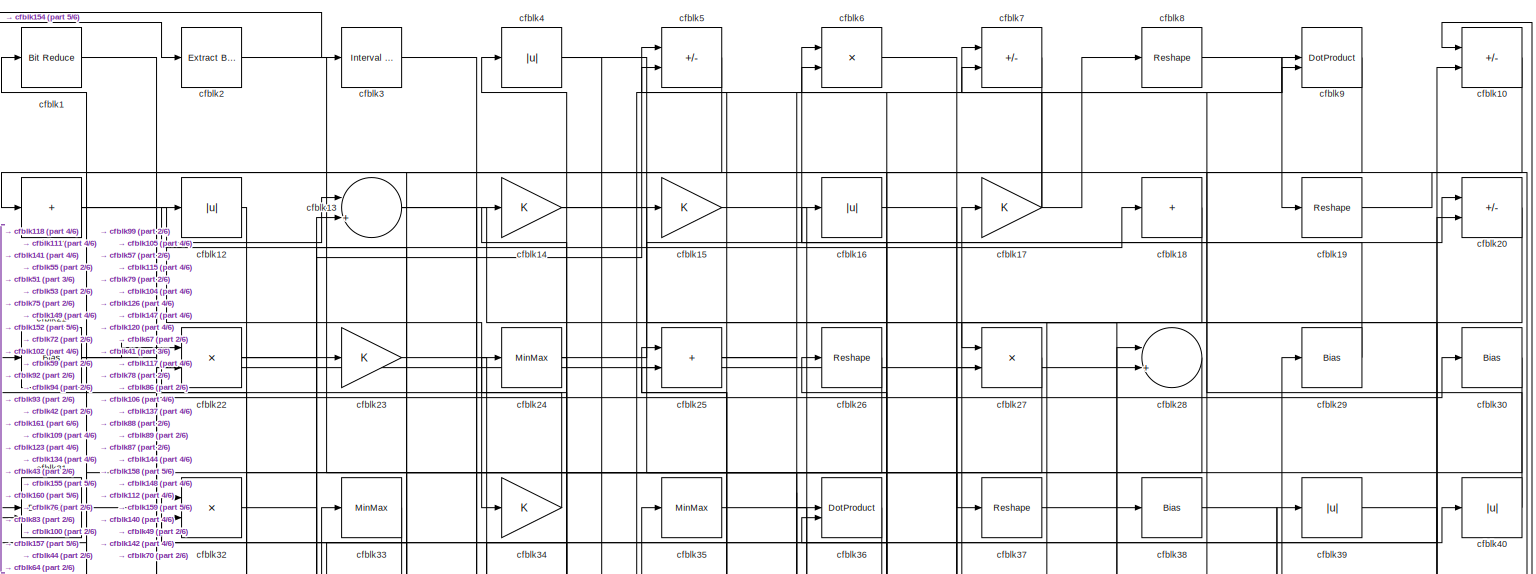
[diagram: root canvas - part 1/6, full width, top band]
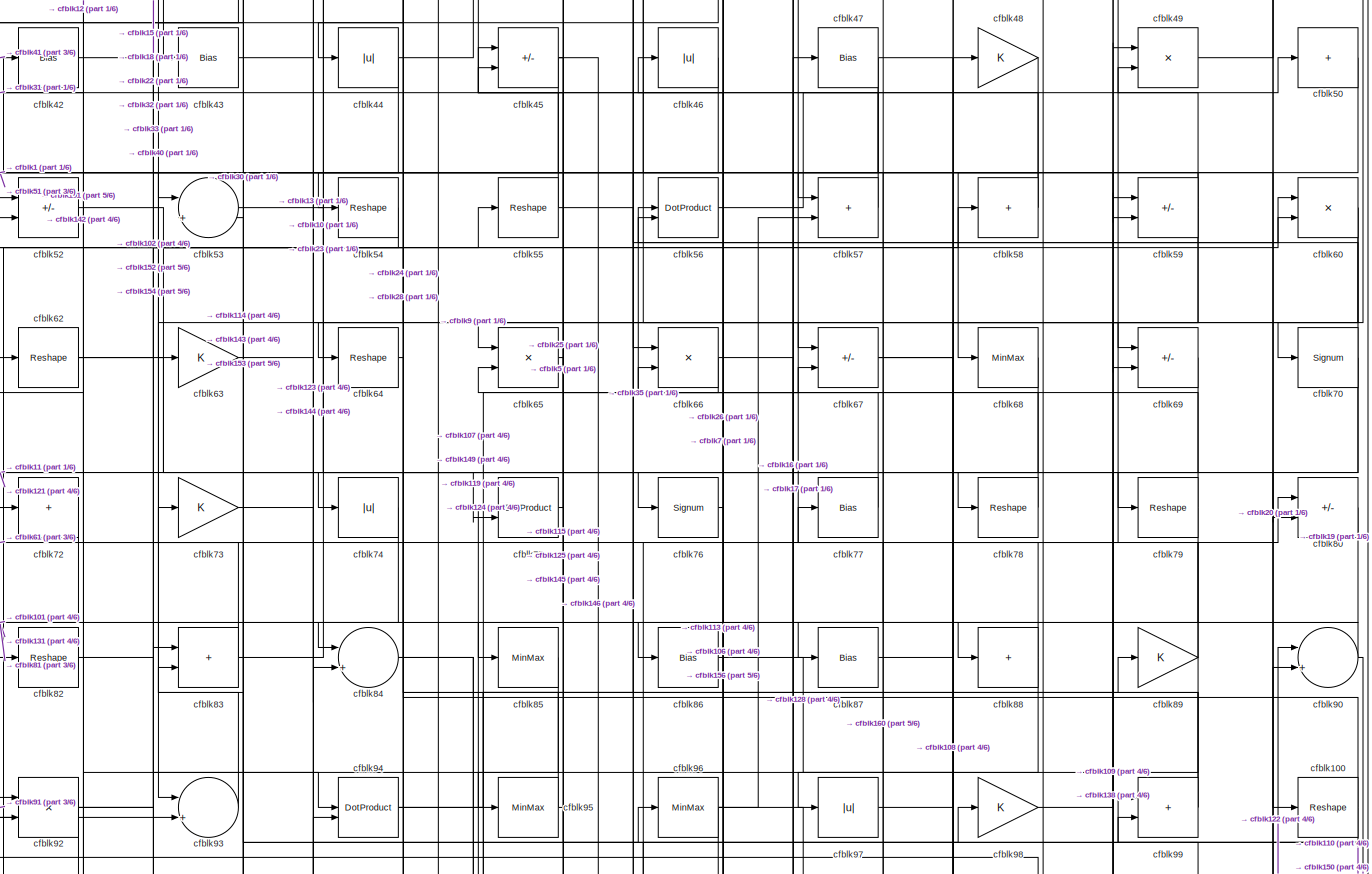
[diagram: root canvas - part 2/6, full width, middle band]
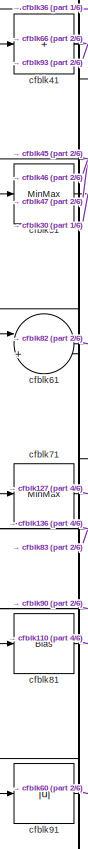
[diagram: root canvas - part 3/6, middle left region]
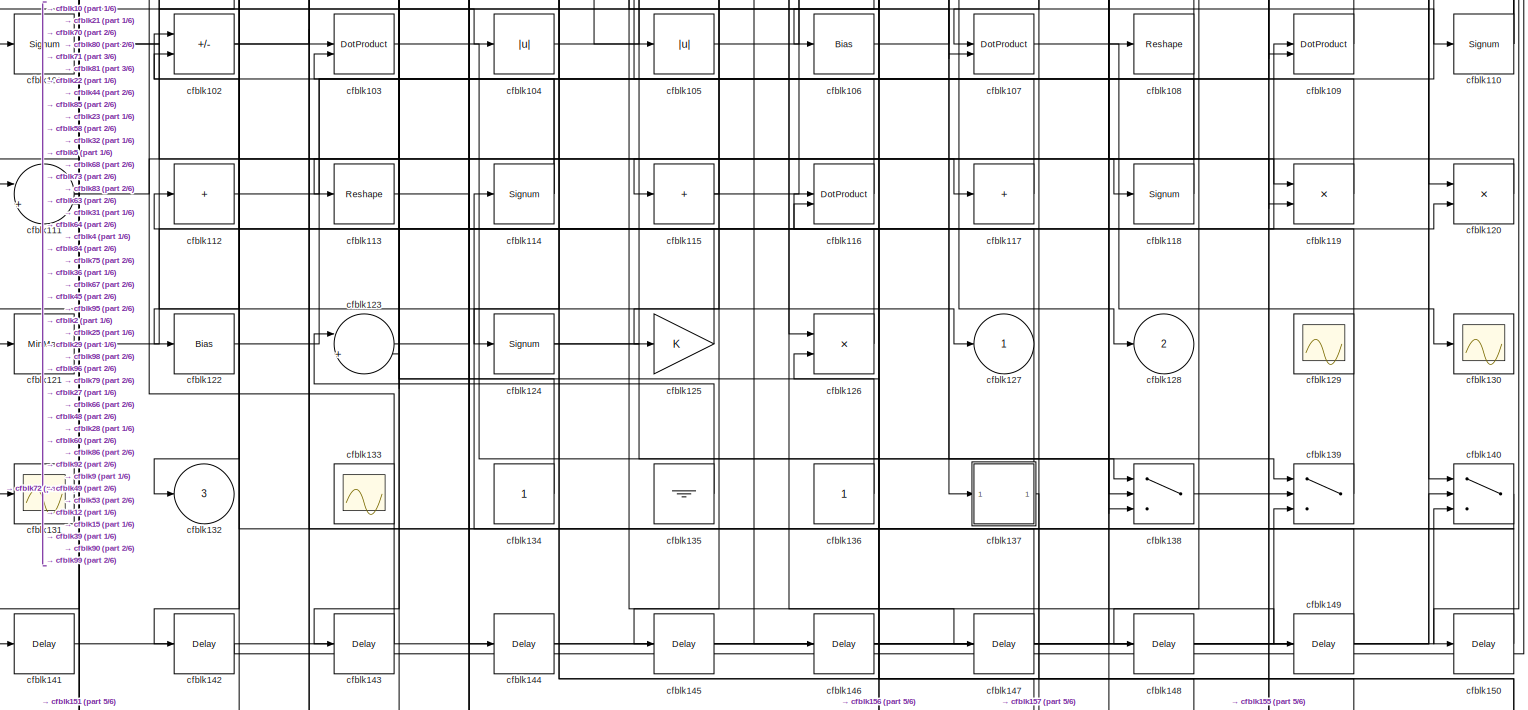
[diagram: root canvas - part 4/6, full width, bottom band]
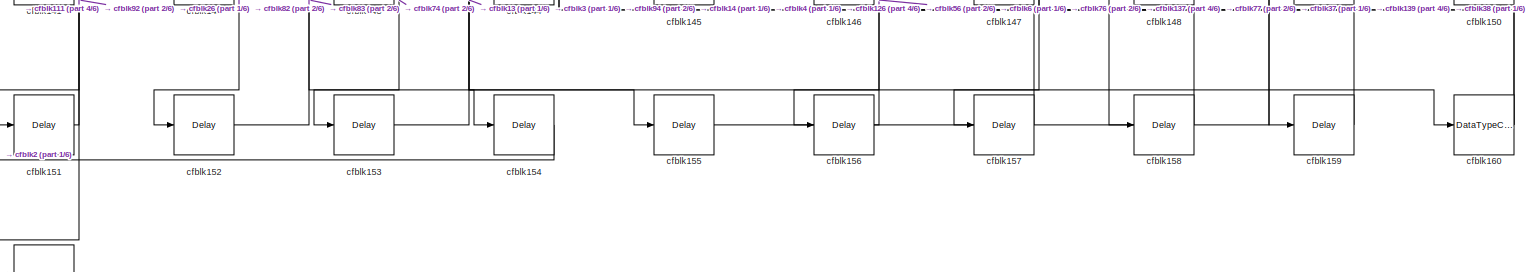
[diagram: root canvas - part 5/6, full width, bottom band]
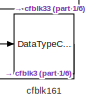
[diagram: root canvas - part 6/6, bottom left region]
MODEL slx_43f7733bcbab
KIND model
CONFIG AbsTol = auto
CONFIG EnableMultiTasking = off
CONFIG FixedStep = auto
CONFIG MaxStep = auto
CONFIG MinStep = auto
CONFIG RelTol = 1e-3
CONFIG SampleTimeConstraint = Unconstrained
CONFIG SolverName = VariableStepAuto
CONFIG StartTime = 0.0
CONFIG StopTime = 10.0
BLOCK [Reference] cfblk1  REF=hdlsllib/Logic and Bit
Operations/Bit Reduce
  SourceBlock = hdlsllib/Logic and Bit\nOperations/Bit Reduce
  SourceType = Bit Reduce
BLOCK [Sum] cfblk10
  IconShape = rectangular
  Inputs = +-
BLOCK [Reshape] cfblk100
BLOCK [Signum] cfblk101
BLOCK [Sum] cfblk102
  IconShape = rectangular
  Inputs = +-
BLOCK [DotProduct] cfblk103
  OutDataTypeStr = Inherit: Inherit via internal rule
BLOCK [Abs] cfblk104
  SaturateOnIntegerOverflow = off
BLOCK [Abs] cfblk105
  SaturateOnIntegerOverflow = off
BLOCK [Bias] cfblk106
  Bias = 0.0
  SaturateOnIntegerOverflow = off
BLOCK [DotProduct] cfblk107
  OutDataTypeStr = Inherit: Inherit via internal rule
BLOCK [Reshape] cfblk108
BLOCK [DotProduct] cfblk109
  OutDataTypeStr = Inherit: Inherit via internal rule
BLOCK [Sum] cfblk11
  IconShape = rectangular
  Inputs = +
BLOCK [Signum] cfblk110
BLOCK [Sum] cfblk111
  Inputs = |++
BLOCK [Sum] cfblk112
  IconShape = rectangular
  Inputs = +
BLOCK [Reshape] cfblk113
BLOCK [Signum] cfblk114
BLOCK [Sum] cfblk115
  IconShape = rectangular
  Inputs = +
BLOCK [DotProduct] cfblk116
  OutDataTypeStr = Inherit: Inherit via internal rule
BLOCK [Sum] cfblk117
  IconShape = rectangular
  Inputs = +
BLOCK [Signum] cfblk118
BLOCK [Product] cfblk119
  Inputs = */
  RndMeth = Zero
  SaturateOnIntegerOverflow = on
BLOCK [Abs] cfblk12
  SaturateOnIntegerOverflow = off
BLOCK [Product] cfblk120
  Inputs = */
  RndMeth = Zero
  SaturateOnIntegerOverflow = on
BLOCK [MinMax] cfblk121
BLOCK [Bias] cfblk122
  Bias = 0.0
  SaturateOnIntegerOverflow = off
BLOCK [Sum] cfblk123
  Inputs = |++
BLOCK [Signum] cfblk124
BLOCK [Gain] cfblk125
BLOCK [Product] cfblk126
  Inputs = */
  RndMeth = Zero
  SaturateOnIntegerOverflow = on
BLOCK [Outport] cfblk127
  VectorParamsAs1DForOutWhenUnconnected = off
BLOCK [Outport] cfblk128
  Port = 2
  VectorParamsAs1DForOutWhenUnconnected = off
BLOCK [Scope] cfblk129
  Floating = on
  NumInputPorts = 1
  ScopeSpecificationString = Simulink.scopes.TimeScopeBlockCfg('CurrentConfiguration', extmgr.ConfigurationSet(extmgr.Configuration('Core','General UI',true,'FigureColor',[0.156862745098039 0.156862745098039 0.156862745098039]),extmgr.Configuration('Core','Source UI',true),extmgr.Configuration('Sources','WiredSimulink',true,'DataLoggingVariableName','ScopeData1','DataLoggingSaveFormat','StructureWithTime','DataLoggingLimitDat...<+2713ch>
BLOCK [Sum] cfblk13
  Inputs = |++
BLOCK [Scope] cfblk130
  Floating = off
  NumInputPorts = 1
  ScopeSpecificationString = Simulink.scopes.TimeScopeBlockCfg('CurrentConfiguration', extmgr.ConfigurationSet(extmgr.Configuration('Core','General UI',true),extmgr.Configuration('Core','Source UI',true),extmgr.Configuration('Sources','WiredSimulink',true,'DataLoggingVariableName','ScopeData2','DataLoggingSaveFormat','Array','DataLoggingLimitDataPoints',true,'DataLoggingDecimation','1'),extmgr.Configuration('Visuals','Time Do...<+868ch>
BLOCK [Scope] cfblk131
  Floating = off
  NumInputPorts = 1
  ScopeSpecificationString = Simulink.scopes.TimeScopeBlockCfg('CurrentConfiguration', extmgr.ConfigurationSet(extmgr.Configuration('Core','General UI',true),extmgr.Configuration('Core','Source UI',true),extmgr.Configuration('Sources','WiredSimulink',true,'DataLoggingVariableName','ScopeData2','DataLoggingSaveFormat','Array','DataLoggingLimitDataPoints',true,'DataLoggingDecimation','1'),extmgr.Configuration('Visuals','Time Do...<+868ch>
BLOCK [Outport] cfblk132
  Port = 3
  VectorParamsAs1DForOutWhenUnconnected = off
BLOCK [Scope] cfblk133
  Floating = on
  NumInputPorts = 1
  ScopeSpecificationString = Simulink.scopes.TimeScopeBlockCfg('CurrentConfiguration', extmgr.ConfigurationSet(extmgr.Configuration('Core','General UI',true,'FigureColor',[0.156862745098039 0.156862745098039 0.156862745098039]),extmgr.Configuration('Core','Source UI',true),extmgr.Configuration('Sources','WiredSimulink',true,'DataLoggingVariableName','ScopeData1','DataLoggingSaveFormat','StructureWithTime','DataLoggingLimitDat...<+2713ch>
BLOCK [Constant] cfblk134
  SampleTime = -1
BLOCK [Ground] cfblk135
BLOCK [Constant] cfblk136
  SampleTime = -1
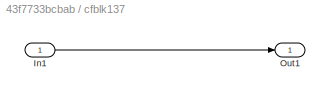
BLOCK [SubSystem] cfblk137
  LibrarySourceBlock = hdlsllib/Ports &\nSubsystems/Subsystem
BLOCK [Inport] cfblk137/In1
BLOCK [Outport] cfblk137/Out1
BLOCK [Switch] cfblk138
  InputSameDT = off
  SaturateOnIntegerOverflow = off
BLOCK [Switch] cfblk139
  InputSameDT = off
  SaturateOnIntegerOverflow = off
BLOCK [Gain] cfblk14
BLOCK [Switch] cfblk140
  InputSameDT = off
  SaturateOnIntegerOverflow = off
BLOCK [Delay] cfblk141
  InputPortMap = u0
  SampleTime = 1
BLOCK [Delay] cfblk142
  InputPortMap = u0
  SampleTime = 1
BLOCK [Delay] cfblk143
  InputPortMap = u0
  SampleTime = 1
BLOCK [Delay] cfblk144
  InputPortMap = u0
  SampleTime = 1
BLOCK [Delay] cfblk145
  InputPortMap = u0
  SampleTime = 1
BLOCK [Delay] cfblk146
  InputPortMap = u0
  SampleTime = 1
BLOCK [Delay] cfblk147
  InputPortMap = u0
  SampleTime = 1
BLOCK [Delay] cfblk148
  InputPortMap = u0
  SampleTime = 1
BLOCK [Delay] cfblk149
  InputPortMap = u0
  SampleTime = 1
BLOCK [Gain] cfblk15
BLOCK [Delay] cfblk150
  InputPortMap = u0
  SampleTime = 1
BLOCK [Delay] cfblk151
  InputPortMap = u0
  SampleTime = 1
BLOCK [Delay] cfblk152
  InputPortMap = u0
  SampleTime = 1
BLOCK [Delay] cfblk153
  InputPortMap = u0
  SampleTime = 1
BLOCK [Delay] cfblk154
  InputPortMap = u0
  SampleTime = 1
BLOCK [Delay] cfblk155
  InputPortMap = u0
  SampleTime = 1
BLOCK [Delay] cfblk156
  InputPortMap = u0
  SampleTime = 1
BLOCK [Delay] cfblk157
  InputPortMap = u0
  SampleTime = 1
BLOCK [Delay] cfblk158
  InputPortMap = u0
  SampleTime = 1
BLOCK [Delay] cfblk159
  InputPortMap = u0
  SampleTime = 1
BLOCK [Abs] cfblk16
  SaturateOnIntegerOverflow = off
BLOCK [DataTypeConversion] cfblk160
  RndMeth = Floor
  SaturateOnIntegerOverflow = off
BLOCK [DataTypeConversion] cfblk161
  OutDataTypeStr = uint8
  RndMeth = Floor
  SaturateOnIntegerOverflow = off
BLOCK [Gain] cfblk17
BLOCK [Sum] cfblk18
  IconShape = rectangular
  Inputs = +
BLOCK [Reshape] cfblk19
BLOCK [Reference] cfblk2  REF=simulink/Logic and Bit
Operations/Extract Bits
  LibrarySourceBlock = hdlsllib/Logic and Bit\nOperations/Extract Bits
  SourceBlock = simulink/Logic and Bit\nOperations/Extract Bits
  SourceType = Extract Bits
BLOCK [Sum] cfblk20
  IconShape = rectangular
  Inputs = +-
BLOCK [Bias] cfblk21
  Bias = 0.0
  SaturateOnIntegerOverflow = off
BLOCK [Product] cfblk22
  Inputs = */
  RndMeth = Zero
  SaturateOnIntegerOverflow = on
BLOCK [Gain] cfblk23
BLOCK [MinMax] cfblk24
BLOCK [Sum] cfblk25
  IconShape = rectangular
BLOCK [Reshape] cfblk26
BLOCK [Product] cfblk27
  Inputs = */
  RndMeth = Zero
  SaturateOnIntegerOverflow = on
BLOCK [Sum] cfblk28
  Inputs = |++
BLOCK [Bias] cfblk29
  Bias = 0.0
  SaturateOnIntegerOverflow = off
BLOCK [Reference] cfblk3  REF=hdlsllib/Logic and Bit
Operations/Interval Test
  SourceBlock = hdlsllib/Logic and Bit\nOperations/Interval Test
  SourceType = Interval Test
BLOCK [Bias] cfblk30
  Bias = 0.0
  SaturateOnIntegerOverflow = off
BLOCK [DotProduct] cfblk31
  OutDataTypeStr = Inherit: Inherit via internal rule
BLOCK [Product] cfblk32
  Inputs = */
  RndMeth = Zero
  SaturateOnIntegerOverflow = on
BLOCK [MinMax] cfblk33
BLOCK [Gain] cfblk34
BLOCK [MinMax] cfblk35
BLOCK [DotProduct] cfblk36
  OutDataTypeStr = Inherit: Inherit via internal rule
BLOCK [Reshape] cfblk37
BLOCK [Bias] cfblk38
  Bias = 0.0
  SaturateOnIntegerOverflow = off
BLOCK [Abs] cfblk39
  SaturateOnIntegerOverflow = off
BLOCK [Abs] cfblk4
  SaturateOnIntegerOverflow = off
BLOCK [Abs] cfblk40
  SaturateOnIntegerOverflow = off
BLOCK [Sum] cfblk41
  IconShape = rectangular
  Inputs = +
BLOCK [Bias] cfblk42
  Bias = 0.0
  SaturateOnIntegerOverflow = off
BLOCK [Bias] cfblk43
  Bias = 0.0
  SaturateOnIntegerOverflow = off
BLOCK [Abs] cfblk44
  SaturateOnIntegerOverflow = off
BLOCK [Sum] cfblk45
  IconShape = rectangular
  Inputs = +-
BLOCK [Abs] cfblk46
  SaturateOnIntegerOverflow = off
BLOCK [Bias] cfblk47
  Bias = 0.0
  SaturateOnIntegerOverflow = off
BLOCK [Gain] cfblk48
BLOCK [Product] cfblk49
  Inputs = */
  RndMeth = Zero
  SaturateOnIntegerOverflow = on
BLOCK [Sum] cfblk5
  IconShape = rectangular
  Inputs = +-
BLOCK [Sum] cfblk50
  IconShape = rectangular
  Inputs = +
BLOCK [MinMax] cfblk51
BLOCK [Sum] cfblk52
  IconShape = rectangular
  Inputs = +-
BLOCK [Sum] cfblk53
  Inputs = |++
BLOCK [Reshape] cfblk54
BLOCK [Reshape] cfblk55
BLOCK [DotProduct] cfblk56
  OutDataTypeStr = Inherit: Inherit via internal rule
BLOCK [Sum] cfblk57
  IconShape = rectangular
BLOCK [Sum] cfblk58
  IconShape = rectangular
  Inputs = +
BLOCK [Sum] cfblk59
  IconShape = rectangular
  Inputs = +-
BLOCK [Product] cfblk6
  Inputs = */
  RndMeth = Zero
  SaturateOnIntegerOverflow = on
BLOCK [Product] cfblk60
  Inputs = */
  RndMeth = Zero
  SaturateOnIntegerOverflow = on
BLOCK [Sum] cfblk61
  Inputs = |++
BLOCK [Reshape] cfblk62
BLOCK [Gain] cfblk63
BLOCK [Reshape] cfblk64
BLOCK [Product] cfblk65
  Inputs = */
  RndMeth = Zero
  SaturateOnIntegerOverflow = on
BLOCK [Product] cfblk66
  Inputs = */
  RndMeth = Zero
  SaturateOnIntegerOverflow = on
BLOCK [Sum] cfblk67
  IconShape = rectangular
  Inputs = +-
BLOCK [MinMax] cfblk68
BLOCK [Sum] cfblk69
  IconShape = rectangular
  Inputs = +-
BLOCK [Sum] cfblk7
  IconShape = rectangular
  Inputs = +-
BLOCK [Signum] cfblk70
BLOCK [MinMax] cfblk71
BLOCK [Sum] cfblk72
  IconShape = rectangular
  Inputs = +
BLOCK [Gain] cfblk73
BLOCK [Abs] cfblk74
  SaturateOnIntegerOverflow = off
BLOCK [DotProduct] cfblk75
  OutDataTypeStr = Inherit: Inherit via internal rule
BLOCK [Signum] cfblk76
BLOCK [Bias] cfblk77
  Bias = 0.0
  SaturateOnIntegerOverflow = off
BLOCK [Reshape] cfblk78
BLOCK [Reshape] cfblk79
BLOCK [Reshape] cfblk8
BLOCK [Sum] cfblk80
  IconShape = rectangular
  Inputs = +-
BLOCK [Bias] cfblk81
  Bias = 0.0
  SaturateOnIntegerOverflow = off
BLOCK [Reshape] cfblk82
BLOCK [Sum] cfblk83
  IconShape = rectangular
BLOCK [Sum] cfblk84
  Inputs = |++
BLOCK [MinMax] cfblk85
BLOCK [Bias] cfblk86
  Bias = 0.0
  SaturateOnIntegerOverflow = off
BLOCK [Bias] cfblk87
  Bias = 0.0
  SaturateOnIntegerOverflow = off
BLOCK [Sum] cfblk88
  IconShape = rectangular
  Inputs = +
BLOCK [Gain] cfblk89
BLOCK [DotProduct] cfblk9
  OutDataTypeStr = Inherit: Inherit via internal rule
BLOCK [Sum] cfblk90
  Inputs = |++
BLOCK [Abs] cfblk91
  SaturateOnIntegerOverflow = off
BLOCK [Product] cfblk92
  Inputs = */
  RndMeth = Zero
  SaturateOnIntegerOverflow = on
BLOCK [Sum] cfblk93
  Inputs = |++
BLOCK [DotProduct] cfblk94
  OutDataTypeStr = Inherit: Inherit via internal rule
BLOCK [MinMax] cfblk95
BLOCK [MinMax] cfblk96
BLOCK [Abs] cfblk97
  SaturateOnIntegerOverflow = off
BLOCK [Gain] cfblk98
BLOCK [Sum] cfblk99
  IconShape = rectangular
NET cfblk100:1 -> cfblk24:1, cfblk99:2
NET cfblk101:1 -> cfblk104:1, cfblk118:1
NET cfblk102:1 -> cfblk23:1, cfblk58:1
LINE cfblk103:1 -> cfblk139:1
LINE cfblk104:1 -> cfblk36:1
LINE cfblk105:1 -> cfblk29:1
LINE cfblk106:1 -> cfblk27:2
LINE cfblk107:1 -> cfblk130:1
NET cfblk108:1 -> cfblk132:1, cfblk92:2
LINE cfblk109:1 -> cfblk12:1
LINE cfblk10:1 -> cfblk111:1
NET cfblk110:1 -> cfblk45:1, cfblk53:2, cfblk99:1
NET cfblk111:1 -> cfblk117:1, cfblk21:1
LINE cfblk112:1 -> cfblk39:1
LINE cfblk113:1 -> cfblk120:2
NET cfblk114:1 -> cfblk102:1, cfblk83:2
NET cfblk115:1 -> cfblk25:2, cfblk98:1
LINE cfblk116:1 -> cfblk103:2
LINE cfblk117:1 -> cfblk36:2
LINE cfblk118:1 -> cfblk31:1
LINE cfblk119:1 -> cfblk75:1
NET cfblk11:1 -> cfblk34:1, cfblk75:2
LINE cfblk120:1 -> cfblk115:1
LINE cfblk121:1 -> cfblk109:1
LINE cfblk122:1 -> cfblk90:1
LINE cfblk123:1 -> cfblk96:1
NET cfblk124:1 -> cfblk138:2, cfblk67:2
LINE cfblk125:1 -> cfblk73:1
LINE cfblk126:1 -> cfblk116:1
LINE cfblk12:1 -> cfblk72:1
LINE cfblk134:1 -> cfblk32:1
LINE cfblk135:1 -> cfblk123:1
LINE cfblk136:1 -> cfblk71:1
LINE cfblk137/In1:1 -> cfblk137/Out1:1
NET cfblk137:1 -> cfblk102:2, cfblk157:1
LINE cfblk138:1 -> cfblk49:1
LINE cfblk139:1 -> cfblk112:1
NET cfblk13:1 -> cfblk100:1, cfblk155:1
LINE cfblk140:1 -> cfblk114:1
LINE cfblk141:1 -> cfblk140:3
LINE cfblk142:1 -> cfblk10:1
LINE cfblk143:1 -> cfblk92:1
LINE cfblk144:1 -> cfblk28:1
LINE cfblk145:1 -> cfblk90:2
LINE cfblk146:1 -> cfblk139:3
LINE cfblk147:1 -> cfblk103:1
LINE cfblk148:1 -> cfblk140:2
LINE cfblk149:1 -> cfblk22:2
NET cfblk14:1 -> cfblk38:1, cfblk5:1
LINE cfblk150:1 -> cfblk116:2
LINE cfblk151:1 -> cfblk111:2
LINE cfblk152:1 -> cfblk83:1
LINE cfblk153:1 -> cfblk94:2
LINE cfblk154:1 -> cfblk2:1
LINE cfblk155:1 -> cfblk139:2
LINE cfblk156:1 -> cfblk126:2
LINE cfblk157:1 -> cfblk4:1
LINE cfblk158:1 -> cfblk6:2
LINE cfblk159:1 -> cfblk14:1
LINE cfblk15:1 -> cfblk120:1
NET cfblk160:1 -> cfblk56:2, cfblk77:1
LINE cfblk161:1 -> cfblk3:1
LINE cfblk16:1 -> cfblk88:1
NET cfblk17:1 -> cfblk11:1, cfblk7:1, cfblk8:1
LINE cfblk18:1 -> cfblk87:1
LINE cfblk19:1 -> cfblk70:1
LINE cfblk1:1 -> cfblk53:1
LINE cfblk20:1 -> cfblk27:1
NET cfblk21:1 -> cfblk13:1, cfblk22:1
NET cfblk22:1 -> cfblk13:2, cfblk94:1
LINE cfblk23:1 -> cfblk76:1
NET cfblk24:1 -> cfblk20:1, cfblk64:1
NET cfblk25:1 -> cfblk147:1, cfblk9:2
LINE cfblk26:1 -> cfblk152:1
LINE cfblk27:1 -> cfblk141:1
LINE cfblk28:1 -> cfblk44:1
LINE cfblk29:1 -> cfblk6:1
LINE cfblk2:1 -> cfblk126:1
LINE cfblk30:1 -> cfblk43:1
LINE cfblk31:1 -> cfblk28:2
LINE cfblk32:1 -> cfblk59:2
LINE cfblk33:1 -> cfblk161:1
LINE cfblk34:1 -> cfblk1:1
LINE cfblk35:1 -> cfblk67:1
LINE cfblk36:1 -> cfblk41:1
LINE cfblk37:1 -> cfblk158:1
LINE cfblk38:1 -> cfblk159:1
LINE cfblk39:1 -> cfblk140:1
LINE cfblk3:1 -> cfblk160:1
LINE cfblk40:1 -> cfblk7:2
NET cfblk41:1 -> cfblk66:1, cfblk93:2
LINE cfblk42:1 -> cfblk40:1
LINE cfblk43:1 -> cfblk69:1
NET cfblk44:1 -> cfblk122:1, cfblk9:1
NET cfblk45:1 -> cfblk145:1, cfblk146:1, cfblk91:1
LINE cfblk46:1 -> cfblk51:1
NET cfblk47:1 -> cfblk61:1, cfblk80:2, cfblk93:1
LINE cfblk48:1 -> cfblk107:1
LINE cfblk49:1 -> cfblk20:2
NET cfblk4:1 -> cfblk105:1, cfblk137:1
LINE cfblk50:1 -> cfblk68:1
LINE cfblk51:1 -> cfblk30:1
LINE cfblk52:1 -> cfblk78:1
LINE cfblk53:1 -> cfblk109:2
LINE cfblk54:1 -> cfblk52:2
NET cfblk55:1 -> cfblk31:2, cfblk60:2
LINE cfblk56:1 -> cfblk50:1
LINE cfblk57:1 -> cfblk35:1
NET cfblk58:1 -> cfblk45:2, cfblk54:1
NET cfblk59:1 -> cfblk49:2, cfblk57:1, cfblk65:1, cfblk69:2
LINE cfblk5:1 -> cfblk123:2
NET cfblk60:1 -> cfblk138:3, cfblk63:1
LINE cfblk61:1 -> cfblk82:1
NET cfblk62:1 -> cfblk55:1, cfblk74:1
LINE cfblk63:1 -> cfblk144:1
LINE cfblk64:1 -> cfblk124:1
LINE cfblk65:1 -> cfblk85:1
NET cfblk66:1 -> cfblk138:1, cfblk65:2
NET cfblk67:1 -> cfblk119:1, cfblk119:2
LINE cfblk68:1 -> cfblk143:1
LINE cfblk69:1 -> cfblk84:1
LINE cfblk6:1 -> cfblk37:1
NET cfblk70:1 -> cfblk121:1, cfblk26:1, cfblk79:1
LINE cfblk71:1 -> cfblk127:1
LINE cfblk72:1 -> cfblk131:1
LINE cfblk73:1 -> cfblk84:2
LINE cfblk74:1 -> cfblk153:1
LINE cfblk75:1 -> cfblk25:1
LINE cfblk76:1 -> cfblk156:1
LINE cfblk77:1 -> cfblk56:1
LINE cfblk78:1 -> cfblk16:1
NET cfblk79:1 -> cfblk106:1, cfblk5:2
LINE cfblk7:1 -> cfblk86:1
LINE cfblk80:1 -> cfblk101:1
LINE cfblk81:1 -> cfblk110:1
LINE cfblk82:1 -> cfblk154:1
NET cfblk83:1 -> cfblk10:2, cfblk61:2
NET cfblk84:1 -> cfblk107:2, cfblk149:1
LINE cfblk85:1 -> cfblk142:1
LINE cfblk86:1 -> cfblk108:1
LINE cfblk87:1 -> cfblk80:1
NET cfblk88:1 -> cfblk42:1, cfblk97:1
NET cfblk89:1 -> cfblk17:1, cfblk62:1, cfblk95:1
LINE cfblk8:1 -> cfblk19:1
NET cfblk90:1 -> cfblk150:1, cfblk81:1
LINE cfblk91:1 -> cfblk60:1
NET cfblk92:1 -> cfblk151:1, cfblk15:1, cfblk18:1
LINE cfblk93:1 -> cfblk33:1
NET cfblk94:1 -> cfblk47:1, cfblk89:1
NET cfblk95:1 -> cfblk125:1, cfblk52:1
NET cfblk96:1 -> cfblk113:1, cfblk128:1, cfblk46:1, cfblk57:2
LINE cfblk97:1 -> cfblk48:1
LINE cfblk98:1 -> cfblk59:1
NET cfblk99:1 -> cfblk32:2, cfblk66:2
LINE cfblk9:1 -> cfblk148:1
note: NET lines group one-source signal fan-out (src -> all destinations, sorted); 1:1 wires keep LINE
